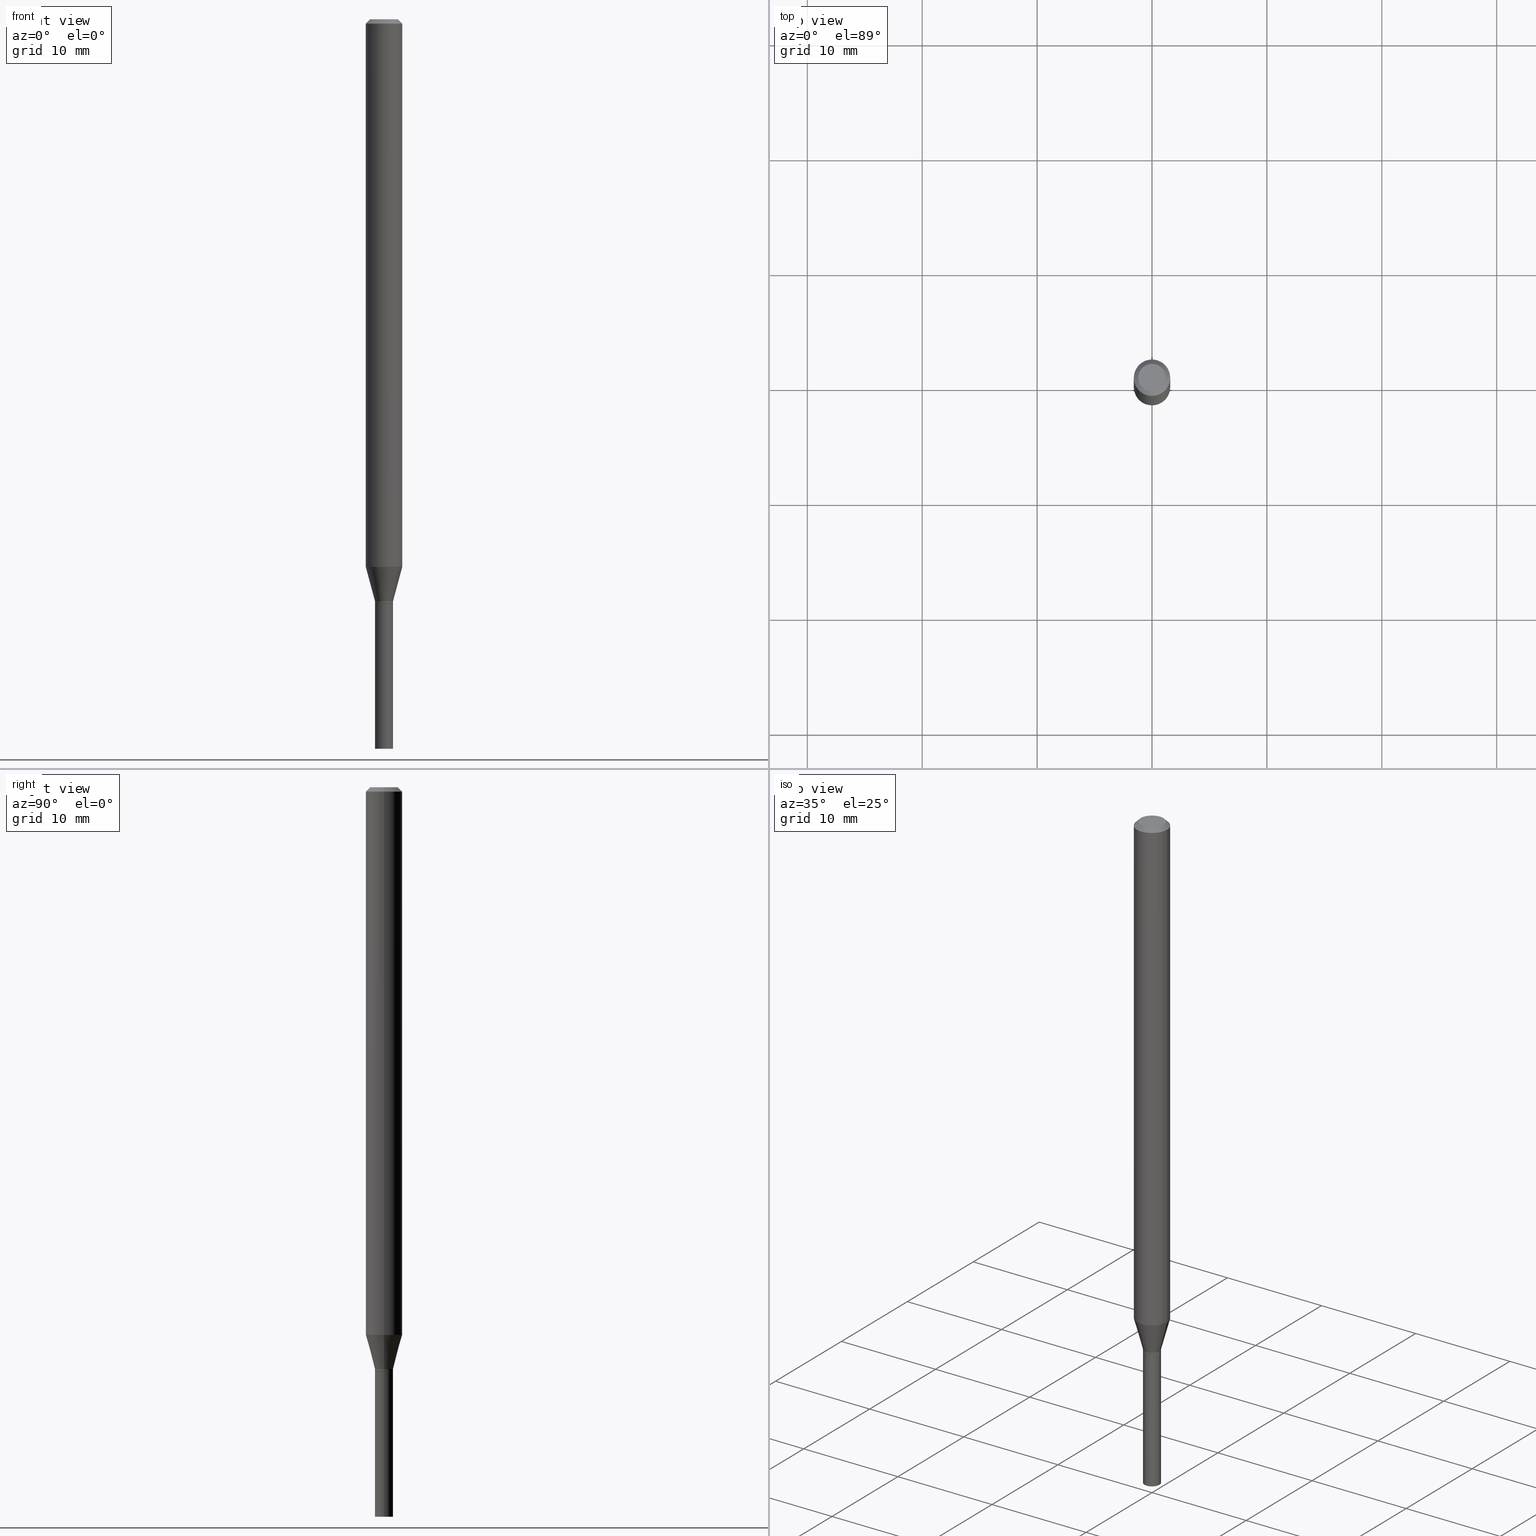
[diagram: canonical four-view strip — front | top / right | iso, engineering-drawing reading convention]
A machine part, canonical four-view strip (front | top / right | iso — engineering-drawing reading convention). The complete STEP part file that produces these views, byte-faithful:
ISO-10303-21;
HEADER;
FILE_DESCRIPTION (( 'STEP AP203' ),
    '1' );
FILE_NAME ('00624.STEP',
    '2024-03-19T22:07:46',
    ( '' ),
    ( '' ),
    'SwSTEP 2.0',
    'SolidWorks 2023',
    '' );
FILE_SCHEMA (( 'CONFIG_CONTROL_DESIGN' ));
ENDSEC;

DATA;
#1 = DIRECTION ( 'NONE',  ( 1.000000000000000000, -6.982962677686266711E-15, 0.000000000000000000 ) ) ;
#2 = EDGE_CURVE ( 'NONE', #117, #336, #379, .T. ) ;
#3 = DIRECTION ( 'NONE',  ( 1.000000000000000000, -6.982962677686266711E-15, 4.876176775795935793E-29 ) ) ;
#4 = ORIENTED_EDGE ( 'NONE', *, *, #252, .T. ) ;
#5 = EDGE_CURVE ( 'NONE', #230, #378, #190, .T. ) ;
#6 = CARTESIAN_POINT ( 'NONE',  ( 0.03099999999999992345, -2.164718430082737148E-16, 1.511614800496736305E-30 ) ) ;
#7 = ORIENTED_EDGE ( 'NONE', *, *, #389, .F. ) ;
#8 = FACE_OUTER_BOUND ( 'NONE', #290, .T. ) ;
#9 = EDGE_LOOP ( 'NONE', ( #403, #189, #405, #225 ) ) ;
#10 = CARTESIAN_POINT ( 'NONE',  ( 3.668203209277705088E-31, -5.237222008264718399E-17, -0.01499999999999999944 ) ) ;
#11 = EDGE_CURVE ( 'NONE', #444, #80, #382, .T. ) ;
#12 = PLANE ( 'NONE',  #276 ) ;
#13 = ORIENTED_EDGE ( 'NONE', *, *, #247, .T. ) ;
#14 = CARTESIAN_POINT ( 'NONE',  ( 0.03099999999999999978, -7.213400446049938314E-15, -2.004000000000000448 ) ) ;
#15 = CONICAL_SURFACE ( 'NONE', #416, 0.03049999999999999586, 0.7853981633969275844 ) ;
#16 = ORIENTED_EDGE ( 'NONE', *, *, #368, .F. ) ;
#17 = ORIENTED_EDGE ( 'NONE', *, *, #31, .T. ) ;
#18 = FACE_OUTER_BOUND ( 'NONE', #298, .T. ) ;
#19 = AXIS2_PLACEMENT_3D ( 'NONE', #158, #88, #271 ) ;
#20 = ORIENTED_EDGE ( 'NONE', *, *, #311, .T. ) ;
#21 = CARTESIAN_POINT ( 'NONE',  ( 0.000000000000000000, 0.000000000000000000, 0.000000000000000000 ) ) ;
#22 = EDGE_CURVE ( 'NONE', #80, #46, #54, .T. ) ;
#23 = DIRECTION ( 'NONE',  ( 2.438088387897960049E-29, -3.491481338843145188E-15, -1.000000000000000000 ) ) ;
#24 = CALENDAR_DATE ( 2024, 19, 3 ) ;
#25 = CARTESIAN_POINT ( 'NONE',  ( -0.04749999999999999362, 3.578768372314207548E-16, -1.869615573468360244E-16 ) ) ;
#26 = AXIS2_PLACEMENT_3D ( 'NONE', #237, #129, #95 ) ;
#27 = PERSON_AND_ORGANIZATION ( #445, #78 ) ;
#28 = PRODUCT_DEFINITION_FORMATION_WITH_SPECIFIED_SOURCE ( 'ANY', '', #224, .NOT_KNOWN. ) ;
#29 = DIRECTION ( 'NONE',  ( -2.445468806185136597E-29, 3.491481338843145583E-15, 1.000000000000000000 ) ) ;
#30 = APPROVAL_DATE_TIME ( #322, #199 ) ;
#31 = EDGE_CURVE ( 'NONE', #378, #444, #270, .T. ) ;
#32 = DIRECTION ( 'NONE',  ( -2.445468806185136597E-29, 3.491481338843145583E-15, 1.000000000000000000 ) ) ;
#33 = COORDINATED_UNIVERSAL_TIME_OFFSET ( 5, 0, .BEHIND. ) ;
#34 = CARTESIAN_POINT ( 'NONE',  ( -0.03049999999999999586, -6.777563841460724793E-15, -2.004000000000000448 ) ) ;
#35 = LOCAL_TIME ( 18, 7, 46.00000000000000000, #361 ) ;
#36 = DIRECTION ( 'NONE',  ( 1.000000000000000000, -6.982962677686254089E-15, 0.000000000000000000 ) ) ;
#37 = EDGE_LOOP ( 'NONE', ( #330, #17, #141, #184 ) ) ;
#38 = ADVANCED_FACE ( 'NONE', ( #52 ), #193, .T. ) ;
#39 = DIRECTION ( 'NONE',  ( 1.000000000000000000, -6.982962677686266711E-15, 4.876176775795935793E-29 ) ) ;
#40 = FACE_OUTER_BOUND ( 'NONE', #9, .T. ) ;
#41 = VERTEX_POINT ( 'NONE', #383 ) ;
#42 = AXIS2_PLACEMENT_3D ( 'NONE', #200, #206, #280 ) ;
#43 = CIRCLE ( 'NONE', #380, 0.03100000000000019060 ) ;
#44 = ADVANCED_FACE ( 'NONE', ( #18 ), #159, .T. ) ;
#45 = DIRECTION ( 'NONE',  ( 0.7071067811865520136, -7.319954787623270245E-15, -0.7071067811865430208 ) ) ;
#46 = VERTEX_POINT ( 'NONE', #174 ) ;
#47 = EDGE_LOOP ( 'NONE', ( #180, #112, #419, #296 ) ) ;
#48 = VECTOR ( 'NONE', #344, 39.37007874015748143 ) ;
#49 = PLANE ( 'NONE',  #107 ) ;
#50 = CARTESIAN_POINT ( 'NONE',  ( -0.06250000000000000000, 3.840629472727444916E-16, -0.01499999999999999944 ) ) ;
#51 = ADVANCED_FACE ( 'NONE', ( #171 ), #318, .F. ) ;
#52 = FACE_OUTER_BOUND ( 'NONE', #304, .T. ) ;
#53 = VERTEX_POINT ( 'NONE', #463 ) ;
#54 = CIRCLE ( 'NONE', #19, 0.03100000000000019060 ) ;
#55 = CARTESIAN_POINT ( 'NONE',  ( -0.06250000000000000000, -6.107467428670576391E-15, -1.876440399561581707 ) ) ;
#56 = CALENDAR_DATE ( 2024, 19, 3 ) ;
#57 = DIRECTION ( 'NONE',  ( -2.445468806185136597E-29, 3.491481338843145583E-15, 1.000000000000000000 ) ) ;
#58 = PERSON_AND_ORGANIZATION_ROLE ( 'creator' ) ;
#59 = DIRECTION ( 'NONE',  ( -2.445468806185136597E-29, 3.491481338843145583E-15, 1.000000000000000000 ) ) ;
#60 = CARTESIAN_POINT ( 'NONE',  ( 4.899496753191922243E-29, -6.995182862372243268E-15, -2.003500000000000281 ) ) ;
#61 = PERSON_AND_ORGANIZATION ( #445, #78 ) ;
#62 = CIRCLE ( 'NONE', #341, 0.06250000000000000000 ) ;
#63 = DIRECTION ( 'NONE',  ( 1.000000000000000000, -6.982962677686270655E-15, 0.000000000000000000 ) ) ;
#64 = PERSON_AND_ORGANIZATION_ROLE ( 'design_supplier' ) ;
#65 = EDGE_CURVE ( 'NONE', #444, #118, #449, .T. ) ;
#66 = DIRECTION ( 'NONE',  ( -2.445468806185136597E-29, 3.491481338843145583E-15, 1.000000000000000000 ) ) ;
#67 = CARTESIAN_POINT ( 'NONE',  ( 4.900719487595015045E-29, -6.996928603041665560E-15, -2.004000000000000448 ) ) ;
#68 = EDGE_CURVE ( 'NONE', #453, #53, #123, .T. ) ;
#69 = VERTEX_POINT ( 'NONE', #461 ) ;
#70 = CIRCLE ( 'NONE', #407, 0.03099999999999999978 ) ;
#71 = LOCAL_TIME ( 18, 7, 46.00000000000000000, #462 ) ;
#72 = CARTESIAN_POINT ( 'NONE',  ( -0.03099999999999999978, -7.642547726989132421E-15, -2.004000000000000448 ) ) ;
#73 = ORIENTED_EDGE ( 'NONE', *, *, #11, .T. ) ;
#74 = LINE ( 'NONE', #331, #452 ) ;
#75 = ORIENTED_EDGE ( 'NONE', *, *, #450, .F. ) ;
#76 = DIRECTION ( 'NONE',  ( 1.000000000000000000, -6.982962677686262766E-15, 0.000000000000000000 ) ) ;
#77 = CC_DESIGN_PERSON_AND_ORGANIZATION_ASSIGNMENT ( #124, #205, ( #28 ) ) ;
#78 = ORGANIZATION ( 'UNSPECIFIED', 'UNSPECIFIED', '' ) ;
#79 = CARTESIAN_POINT ( 'NONE',  ( 4.876264799533162378E-29, -6.962013789653233122E-15, -1.993999999999999995 ) ) ;
#80 = VERTEX_POINT ( 'NONE', #351 ) ;
#81 = LINE ( 'NONE', #376, #317 ) ;
#82 = EDGE_CURVE ( 'NONE', #46, #453, #457, .T. ) ;
#83 = ORIENTED_EDGE ( 'NONE', *, *, #229, .T. ) ;
#84 =( NAMED_UNIT ( * ) SI_UNIT ( $, .STERADIAN. ) SOLID_ANGLE_UNIT ( ) );
#85 = VERTEX_POINT ( 'NONE', #55 ) ;
#86 = CONICAL_SURFACE ( 'NONE', #226, 0.06250000000000000000, 0.7853981633974547183 ) ;
#87 = APPROVAL_PERSON_ORGANIZATION ( #207, #299, #127 ) ;
#88 = DIRECTION ( 'NONE',  ( -2.445468806185136597E-29, 3.491481338843145583E-15, 1.000000000000000000 ) ) ;
#89 = ORIENTED_EDGE ( 'NONE', *, *, #5, .F. ) ;
#90 = ADVANCED_FACE ( 'NONE', ( #285 ), #426, .T. ) ;
#91 = ORIENTED_EDGE ( 'NONE', *, *, #68, .T. ) ;
#92 = CONICAL_SURFACE ( 'NONE', #176, 0.03100000000000019060, 0.2617993877991507956 ) ;
#93 = CARTESIAN_POINT ( 'NONE',  ( 0.06250000000000000000, -4.364351673553916694E-16, 3.047610484872459871E-30 ) ) ;
#94 = CIRCLE ( 'NONE', #114, 0.03099999999999999978 ) ;
#95 = DIRECTION ( 'NONE',  ( 1.000000000000000000, -6.982962677686262766E-15, 0.000000000000000000 ) ) ;
#96 = FACE_OUTER_BOUND ( 'NONE', #37, .T. ) ;
#97 = DIRECTION ( 'NONE',  ( 2.445468806185136597E-29, -3.491481338843145583E-15, -1.000000000000000000 ) ) ;
#98 = VECTOR ( 'NONE', #277, 39.37007874015748143 ) ;
#99 = DIRECTION ( 'NONE',  ( 1.000000000000000000, 0.000000000000000000, 0.000000000000000000 ) ) ;
#100 = AXIS2_PLACEMENT_3D ( 'NONE', #390, #359, #99 ) ;
#101 = DIRECTION ( 'NONE',  ( 1.000000000000000000, -6.982962677686258033E-15, 0.000000000000000000 ) ) ;
#102 = APPLICATION_CONTEXT ( 'configuration controlled 3d designs of mechanical parts and assemblies' ) ;
#103 = LINE ( 'NONE', #397, #269 ) ;
#104 = ORIENTED_EDGE ( 'NONE', *, *, #65, .T. ) ;
#105 = CARTESIAN_POINT ( 'NONE',  ( 4.900719487595015045E-29, -6.996928603041665560E-15, -2.004000000000000448 ) ) ;
#106 = AXIS2_PLACEMENT_3D ( 'NONE', #327, #66, #334 ) ;
#107 = AXIS2_PLACEMENT_3D ( 'NONE', #406, #443, #221 ) ;
#108 = DIRECTION ( 'NONE',  ( 1.000000000000000000, -6.982962677686270655E-15, 0.000000000000000000 ) ) ;
#109 = DIRECTION ( 'NONE',  ( -2.445468806185136597E-29, 3.491481338843145583E-15, 1.000000000000000000 ) ) ;
#110 = EDGE_LOOP ( 'NONE', ( #147, #104, #293, #268 ) ) ;
#111 = DIRECTION ( 'NONE',  ( 1.000000000000000000, -6.982962677686270655E-15, 0.000000000000000000 ) ) ;
#112 = ORIENTED_EDGE ( 'NONE', *, *, #151, .T. ) ;
#113 = CLOSED_SHELL ( 'NONE', ( #38, #166, #377, #236, #128, #438, #303, #121, #51, #395, #346, #90 ) ) ;
#114 = AXIS2_PLACEMENT_3D ( 'NONE', #140, #434, #111 ) ;
#115 = DIRECTION ( 'NONE',  ( -2.445468806185136597E-29, 3.491481338843145583E-15, 1.000000000000000000 ) ) ;
#116 = ORIENTED_EDGE ( 'NONE', *, *, #295, .F. ) ;
#117 = VERTEX_POINT ( 'NONE', #25 ) ;
#118 = VERTEX_POINT ( 'NONE', #126 ) ;
#119 = CIRCLE ( 'NONE', #243, 0.06250000000000000000 ) ;
#120 = EDGE_LOOP ( 'NONE', ( #409, #7 ) ) ;
#121 = ADVANCED_FACE ( 'NONE', ( #196 ), #86, .T. ) ;
#122 = ORIENTED_EDGE ( 'NONE', *, *, #252, .F. ) ;
#123 = LINE ( 'NONE', #93, #323 ) ;
#124 = PERSON_AND_ORGANIZATION ( #445, #78 ) ;
#125 = AXIS2_PLACEMENT_3D ( 'NONE', #454, #430, #393 ) ;
#126 = CARTESIAN_POINT ( 'NONE',  ( 0.03099999999999964936, -7.211654705380514444E-15, -2.003500000000000281 ) ) ;
#127 = APPROVAL_ROLE ( '' ) ;
#128 = ADVANCED_FACE ( 'NONE', ( #321 ), #92, .T. ) ;
#129 = DIRECTION ( 'NONE',  ( -2.445468806185136597E-29, 3.491481338843145583E-15, 1.000000000000000000 ) ) ;
#130 = APPROVAL_DATE_TIME ( #278, #299 ) ;
#131 = DIRECTION ( 'NONE',  ( -1.000000000000000000, 6.982962677686266711E-15, 0.000000000000000000 ) ) ;
#132 = CARTESIAN_POINT ( 'NONE',  ( 3.668203209277705088E-31, -5.237222008264718399E-17, -0.01499999999999999944 ) ) ;
#133 = AXIS2_PLACEMENT_3D ( 'NONE', #358, #239, #355 ) ;
#134 = APPROVAL_STATUS ( 'not_yet_approved' ) ;
#135 = EDGE_CURVE ( 'NONE', #381, #442, #242, .T. ) ;
#136 = CARTESIAN_POINT ( 'NONE',  ( -0.06250000000000000000, -2.857875219451580624E-15, -0.01499999999999999944 ) ) ;
#137 = ORIENTED_EDGE ( 'NONE', *, *, #247, .F. ) ;
#138 = LINE ( 'NONE', #175, #424 ) ;
#139 = ORIENTED_EDGE ( 'NONE', *, *, #465, .T. ) ;
#140 = CARTESIAN_POINT ( 'NONE',  ( 4.900719487595014484E-29, -6.996928603041664772E-15, -2.004000000000000448 ) ) ;
#141 = ORIENTED_EDGE ( 'NONE', *, *, #186, .F. ) ;
#142 = APPROVAL_PERSON_ORGANIZATION ( #422, #281, #354 ) ;
#143 = DIRECTION ( 'NONE',  ( -2.445468806185136597E-29, 3.491481338843145583E-15, 1.000000000000000000 ) ) ;
#144 = EDGE_CURVE ( 'NONE', #85, #453, #348, .T. ) ;
#145 = EDGE_LOOP ( 'NONE', ( #13, #83 ) ) ;
#146 = DIRECTION ( 'NONE',  ( -2.445468806185136597E-29, 3.491481338843145583E-15, 1.000000000000000000 ) ) ;
#147 = ORIENTED_EDGE ( 'NONE', *, *, #11, .F. ) ;
#148 = ADVANCED_FACE ( 'NONE', ( #314 ), #167, .T. ) ;
#149 = CARTESIAN_POINT ( 'NONE',  ( 6.198122052593289668E-29, -8.607766087339451973E-15, -2.500000000000000000 ) ) ;
#150 = VERTEX_POINT ( 'NONE', #320 ) ;
#151 = EDGE_CURVE ( 'NONE', #85, #336, #244, .T. ) ;
#152 = AXIS2_PLACEMENT_3D ( 'NONE', #67, #248, #36 ) ;
#153 = CC_DESIGN_APPROVAL ( #199, ( #28 ) ) ;
#154 =( NAMED_UNIT ( * ) PLANE_ANGLE_UNIT ( ) SI_UNIT ( $, .RADIAN. ) );
#155 = ADVANCED_BREP_SHAPE_REPRESENTATION ( '00624', ( #413, #257, #100 ), #436 ) ;
#156 = ORIENTED_EDGE ( 'NONE', *, *, #368, .T. ) ;
#157 = CARTESIAN_POINT ( 'NONE',  ( 0.06250000000000000000, -6.987991805876030676E-15, -1.876440399561581707 ) ) ;
#158 = CARTESIAN_POINT ( 'NONE',  ( 4.876264799533162378E-29, -6.962013789653233122E-15, -1.993999999999999995 ) ) ;
#159 = CYLINDRICAL_SURFACE ( 'NONE', #316, 0.03099999999999999978 ) ;
#160 = AXIS2_PLACEMENT_3D ( 'NONE', #194, #345, #451 ) ;
#161 = LOCAL_TIME ( 18, 7, 46.00000000000000000, #33 ) ;
#162 = PRODUCT_RELATED_PRODUCT_CATEGORY ( 'detail', '', ( #224 ) ) ;
#163 = ORIENTED_EDGE ( 'NONE', *, *, #295, .T. ) ;
#164 = CARTESIAN_POINT ( 'NONE',  ( 3.316907271900976096E-16, 0.04749999999999999362, -2.593261422684662377E-16 ) ) ;
#165 = APPROVAL_STATUS ( 'not_yet_approved' ) ;
#166 = ADVANCED_FACE ( 'NONE', ( #96 ), #332, .T. ) ;
#167 = CYLINDRICAL_SURFACE ( 'NONE', #42, 0.03099999999999999978 ) ;
#168 = DATE_AND_TIME ( #24, #35 ) ;
#169 = AXIS2_PLACEMENT_3D ( 'NONE', #447, #411, #222 ) ;
#170 = CONICAL_SURFACE ( 'NONE', #211, 0.06250000000000000000, 0.7853981633974547183 ) ;
#171 = FACE_OUTER_BOUND ( 'NONE', #145, .T. ) ;
#172 = DATE_AND_TIME ( #56, #71 ) ;
#173 = CARTESIAN_POINT ( 'NONE',  ( -0.06250000000000000000, 4.440892098500626162E-16, -3.074334431409316114E-30 ) ) ;
#174 = CARTESIAN_POINT ( 'NONE',  ( 0.03100000000000019060, -7.178485632661508242E-15, -1.993999999999999995 ) ) ;
#175 = CARTESIAN_POINT ( 'NONE',  ( -0.03100000000000019060, -6.741745541567601080E-15, -1.993999999999999995 ) ) ;
#176 = AXIS2_PLACEMENT_3D ( 'NONE', #421, #29, #101 ) ;
#177 = DIRECTION ( 'NONE',  ( -2.445468806185136597E-29, 3.491481338843145583E-15, 1.000000000000000000 ) ) ;
#178 = ORIENTED_EDGE ( 'NONE', *, *, #261, .F. ) ;
#179 = CYLINDRICAL_SURFACE ( 'NONE', #429, 0.06250000000000000000 ) ;
#180 = ORIENTED_EDGE ( 'NONE', *, *, #261, .T. ) ;
#181 = EDGE_CURVE ( 'NONE', #69, #150, #70, .T. ) ;
#182 = DIRECTION ( 'NONE',  ( 1.000000000000000000, -6.982962677686265922E-15, 4.876176775795935793E-29 ) ) ;
#183 = DIRECTION ( 'NONE',  ( 0.7071067811861793118, -2.468850131078399925E-15, 0.7071067811869157227 ) ) ;
#184 = ORIENTED_EDGE ( 'NONE', *, *, #288, .F. ) ;
#185 =( LENGTH_UNIT ( ) NAMED_UNIT ( * ) SI_UNIT ( $, .METRE. ) );
#186 = EDGE_CURVE ( 'NONE', #118, #444, #363, .T. ) ;
#187 = ORIENTED_EDGE ( 'NONE', *, *, #389, .T. ) ;
#188 = CARTESIAN_POINT ( 'NONE',  ( 4.876264799533162378E-29, -6.962013789653233122E-15, -1.993999999999999995 ) ) ;
#189 = ORIENTED_EDGE ( 'NONE', *, *, #231, .T. ) ;
#190 = CIRCLE ( 'NONE', #169, 0.03049999999999999586 ) ;
#191 = CIRCLE ( 'NONE', #253, 0.06250000000000000000 ) ;
#192 = CARTESIAN_POINT ( 'NONE',  ( -0.03099999999999992345, 2.202682480856305137E-16, -1.524869877979016933E-30 ) ) ;
#193 = CYLINDRICAL_SURFACE ( 'NONE', #160, 0.03099999999999992345 ) ;
#194 = CARTESIAN_POINT ( 'NONE',  ( 0.000000000000000000, 0.000000000000000000, 0.000000000000000000 ) ) ;
#195 = AXIS2_PLACEMENT_3D ( 'NONE', #60, #204, #428 ) ;
#196 = FACE_OUTER_BOUND ( 'NONE', #347, .T. ) ;
#197 = PERSON_AND_ORGANIZATION ( #445, #78 ) ;
#198 = DIRECTION ( 'NONE',  ( -2.445468806185136597E-29, 3.491481338843145583E-15, 1.000000000000000000 ) ) ;
#199 = APPROVAL ( #165, 'UNSPECIFIED' ) ;
#200 = CARTESIAN_POINT ( 'NONE',  ( 0.000000000000000000, 0.000000000000000000, 0.000000000000000000 ) ) ;
#201 = APPLICATION_PROTOCOL_DEFINITION ( 'international standard', 'config_control_design', 1994, #212 ) ;
#202 = VECTOR ( 'NONE', #464, 39.37007874015748854 ) ;
#203 = CONICAL_SURFACE ( 'NONE', #392, 0.03100000000000019060, 0.2617993877991507956 ) ;
#204 = DIRECTION ( 'NONE',  ( -2.445468806185136597E-29, 3.491481338843145583E-15, 1.000000000000000000 ) ) ;
#205 = PERSON_AND_ORGANIZATION_ROLE ( 'creator' ) ;
#206 = DIRECTION ( 'NONE',  ( -2.445468806185136597E-29, 3.491481338843145583E-15, 1.000000000000000000 ) ) ;
#207 = PERSON_AND_ORGANIZATION ( #445, #78 ) ;
#208 = CARTESIAN_POINT ( 'NONE',  ( 3.668203209277705088E-31, -5.237222008264718399E-17, -0.01499999999999999944 ) ) ;
#209 = DIRECTION ( 'NONE',  ( -2.445468806185136877E-29, 3.491481338843145188E-15, 1.000000000000000000 ) ) ;
#210 = AXIS2_PLACEMENT_3D ( 'NONE', #360, #32, #289 ) ;
#211 = AXIS2_PLACEMENT_3D ( 'NONE', #250, #400, #396 ) ;
#212 = APPLICATION_CONTEXT ( 'configuration controlled 3d designs of mechanical parts and assemblies' ) ;
#213 = CARTESIAN_POINT ( 'NONE',  ( 0.000000000000000000, 0.000000000000000000, 0.000000000000000000 ) ) ;
#214 = CARTESIAN_POINT ( 'NONE',  ( 4.900719487595014484E-29, -6.996928603041664772E-15, -2.004000000000000448 ) ) ;
#215 = ORIENTED_EDGE ( 'NONE', *, *, #450, .T. ) ;
#216 = LINE ( 'NONE', #369, #460 ) ;
#217 = EDGE_LOOP ( 'NONE', ( #433, #325, #309, #338 ) ) ;
#218 = LOCAL_TIME ( 18, 7, 46.00000000000000000, #394 ) ;
#219 = DIRECTION ( 'NONE',  ( 1.000000000000000000, -6.982962677686258033E-15, 0.000000000000000000 ) ) ;
#220 = ORIENTED_EDGE ( 'NONE', *, *, #144, .T. ) ;
#221 = DIRECTION ( 'NONE',  ( -1.000000000000000000, 6.982962677686265922E-15, -4.876176775795935793E-29 ) ) ;
#222 = DIRECTION ( 'NONE',  ( 1.000000000000000000, -6.982962677686254089E-15, 0.000000000000000000 ) ) ;
#223 = DIRECTION ( 'NONE',  ( -2.445468806185136877E-29, 3.491481338843145188E-15, 1.000000000000000000 ) ) ;
#224 = PRODUCT ( '00624', '00624', '', ( #384 ) ) ;
#225 = ORIENTED_EDGE ( 'NONE', *, *, #65, .F. ) ;
#226 = AXIS2_PLACEMENT_3D ( 'NONE', #132, #97, #131 ) ;
#227 = AXIS2_PLACEMENT_3D ( 'NONE', #214, #367, #182 ) ;
#228 = DIRECTION ( 'NONE',  ( -0.7071067811861793118, 7.493145998869024141E-15, 0.7071067811869157227 ) ) ;
#229 = EDGE_CURVE ( 'NONE', #41, #117, #466, .T. ) ;
#230 = VERTEX_POINT ( 'NONE', #441 ) ;
#231 = EDGE_CURVE ( 'NONE', #378, #230, #302, .T. ) ;
#232 = ORIENTED_EDGE ( 'NONE', *, *, #22, .T. ) ;
#233 = PERSON_AND_ORGANIZATION ( #445, #78 ) ;
#234 = AXIS2_PLACEMENT_3D ( 'NONE', #164, #23, #312 ) ;
#235 = VECTOR ( 'NONE', #291, 39.37007874015748143 ) ;
#236 = ADVANCED_FACE ( 'NONE', ( #287 ), #324, .T. ) ;
#237 = CARTESIAN_POINT ( 'NONE',  ( 4.588776463793421999E-29, -6.551556638520639007E-15, -1.876440399561581707 ) ) ;
#238 = APPROVAL_STATUS ( 'not_yet_approved' ) ;
#239 = DIRECTION ( 'NONE',  ( -2.445468806185136597E-29, 3.491481338843145583E-15, 1.000000000000000000 ) ) ;
#240 = SHAPE_DEFINITION_REPRESENTATION ( #374, #155 ) ;
#241 = CARTESIAN_POINT ( 'NONE',  ( 6.113672015462842613E-29, -8.728703347107864943E-15, -2.500000000000000000 ) ) ;
#242 = CIRCLE ( 'NONE', #423, 0.03099999999999999978 ) ;
#243 = AXIS2_PLACEMENT_3D ( 'NONE', #208, #177, #294 ) ;
#244 = LINE ( 'NONE', #173, #98 ) ;
#245 = PERSON_AND_ORGANIZATION_ROLE ( 'design_owner' ) ;
#246 = DIRECTION ( 'NONE',  ( 1.000000000000000000, -6.982962677686270655E-15, 0.000000000000000000 ) ) ;
#247 = EDGE_CURVE ( 'NONE', #117, #41, #275, .T. ) ;
#248 = DIRECTION ( 'NONE',  ( -2.445468806185136597E-29, 3.491481338843145583E-15, 1.000000000000000000 ) ) ;
#249 = ORIENTED_EDGE ( 'NONE', *, *, #151, .F. ) ;
#250 = CARTESIAN_POINT ( 'NONE',  ( 3.668203209277705088E-31, -5.237222008264718399E-17, -0.01499999999999999944 ) ) ;
#251 = AXIS2_PLACEMENT_3D ( 'NONE', #213, #258, #39 ) ;
#252 = EDGE_CURVE ( 'NONE', #336, #53, #119, .T. ) ;
#253 = AXIS2_PLACEMENT_3D ( 'NONE', #404, #365, #76 ) ;
#254 = CC_DESIGN_APPROVAL ( #299, ( #370 ) ) ;
#255 = FACE_OUTER_BOUND ( 'NONE', #435, .T. ) ;
#256 = ORIENTED_EDGE ( 'NONE', *, *, #231, .F. ) ;
#257 = MANIFOLD_SOLID_BREP ( 'Body-Move/Copy2[2]', #113 ) ;
#258 = DIRECTION ( 'NONE',  ( -2.445468806185136597E-29, 3.491481338843145583E-15, 1.000000000000000000 ) ) ;
#259 = DESIGN_CONTEXT ( 'detailed design', #212, 'design' ) ;
#260 = ORIENTED_EDGE ( 'NONE', *, *, #2, .T. ) ;
#261 = EDGE_CURVE ( 'NONE', #453, #85, #191, .T. ) ;
#262 = FACE_OUTER_BOUND ( 'NONE', #371, .T. ) ;
#263 = ORIENTED_EDGE ( 'NONE', *, *, #181, .T. ) ;
#264 = CLOSED_SHELL ( 'NONE', ( #148, #410, #44, #420 ) ) ;
#265 = DIRECTION ( 'NONE',  ( 1.000000000000000000, -6.982962677686258033E-15, 0.000000000000000000 ) ) ;
#266 = DIRECTION ( 'NONE',  ( -0.7071067811865520136, 2.468850131082303998E-15, -0.7071067811865430208 ) ) ;
#267 = EDGE_LOOP ( 'NONE', ( #156, #301 ) ) ;
#268 = ORIENTED_EDGE ( 'NONE', *, *, #22, .F. ) ;
#269 = VECTOR ( 'NONE', #209, 39.37007874015748143 ) ;
#270 = LINE ( 'NONE', #417, #458 ) ;
#271 = DIRECTION ( 'NONE',  ( 1.000000000000000000, -6.982962677686258033E-15, 0.000000000000000000 ) ) ;
#272 = EDGE_CURVE ( 'NONE', #41, #53, #216, .T. ) ;
#273 = CARTESIAN_POINT ( 'NONE',  ( 0.000000000000000000, 0.000000000000000000, 0.000000000000000000 ) ) ;
#274 = SECURITY_CLASSIFICATION_LEVEL ( 'unclassified' ) ;
#275 = CIRCLE ( 'NONE', #106, 0.04749999999999999362 ) ;
#276 = AXIS2_PLACEMENT_3D ( 'NONE', #149, #337, #300 ) ;
#277 = DIRECTION ( 'NONE',  ( -2.445468806185136877E-29, 3.491481338843145188E-15, 1.000000000000000000 ) ) ;
#278 = DATE_AND_TIME ( #286, #161 ) ;
#279 = DIRECTION ( 'NONE',  ( -2.445468806185136877E-29, 3.491481338843145188E-15, 1.000000000000000000 ) ) ;
#280 = DIRECTION ( 'NONE',  ( 1.000000000000000000, -6.982962677686266711E-15, 4.876176775795935232E-29 ) ) ;
#281 = APPROVAL ( #238, 'UNSPECIFIED' ) ;
#282 = DATE_AND_TIME ( #356, #218 ) ;
#283 = AXIS2_PLACEMENT_3D ( 'NONE', #273, #57, #385 ) ;
#284 = APPROVAL_PERSON_ORGANIZATION ( #427, #199, #387 ) ;
#285 = FACE_OUTER_BOUND ( 'NONE', #110, .T. ) ;
#286 = CALENDAR_DATE ( 2024, 19, 3 ) ;
#287 = FACE_OUTER_BOUND ( 'NONE', #47, .T. ) ;
#288 = EDGE_CURVE ( 'NONE', #230, #118, #74, .T. ) ;
#289 = DIRECTION ( 'NONE',  ( 1.000000000000000000, -6.982962677686267499E-15, 4.852736867747366768E-29 ) ) ;
#290 = EDGE_LOOP ( 'NONE', ( #249, #220, #91, #122 ) ) ;
#291 = DIRECTION ( 'NONE',  ( -2.445468806185136877E-29, 3.491481338843145188E-15, 1.000000000000000000 ) ) ;
#292 = CC_DESIGN_APPROVAL ( #281, ( #342 ) ) ;
#293 = ORIENTED_EDGE ( 'NONE', *, *, #386, .T. ) ;
#294 = DIRECTION ( 'NONE',  ( 1.000000000000000000, -6.982962677686266711E-15, 0.000000000000000000 ) ) ;
#295 = EDGE_CURVE ( 'NONE', #69, #442, #103, .T. ) ;
#296 = ORIENTED_EDGE ( 'NONE', *, *, #68, .F. ) ;
#297 = DIRECTION ( 'NONE',  ( 1.000000000000000000, -6.982962677686254089E-15, 0.000000000000000000 ) ) ;
#298 = EDGE_LOOP ( 'NONE', ( #448, #187, #163, #401 ) ) ;
#299 = APPROVAL ( #134, 'UNSPECIFIED' ) ;
#300 = DIRECTION ( 'NONE',  ( 1.000000000000000000, -6.982962677686265922E-15, 4.876176775795935793E-29 ) ) ;
#301 = ORIENTED_EDGE ( 'NONE', *, *, #135, .T. ) ;
#302 = CIRCLE ( 'NONE', #152, 0.03049999999999999586 ) ;
#303 = ADVANCED_FACE ( 'NONE', ( #8 ), #179, .T. ) ;
#304 = EDGE_LOOP ( 'NONE', ( #375, #73, #75, #307 ) ) ;
#305 = EDGE_CURVE ( 'NONE', #53, #336, #62, .T. ) ;
#306 =( CONVERSION_BASED_UNIT ( 'INCH', #339 ) LENGTH_UNIT ( ) NAMED_UNIT ( #373 ) );
#307 = ORIENTED_EDGE ( 'NONE', *, *, #386, .F. ) ;
#308 = UNCERTAINTY_MEASURE_WITH_UNIT (LENGTH_MEASURE( 1.000000000000000082E-05 ), #306, 'distance_accuracy_value', 'NONE');
#309 = ORIENTED_EDGE ( 'NONE', *, *, #305, .T. ) ;
#310 = ORIENTED_EDGE ( 'NONE', *, *, #82, .F. ) ;
#311 = EDGE_CURVE ( 'NONE', #80, #85, #138, .T. ) ;
#312 = DIRECTION ( 'NONE',  ( -1.000000000000000000, 6.982962677686265922E-15, -4.876176775795935793E-29 ) ) ;
#313 = COORDINATED_UNIVERSAL_TIME_OFFSET ( 5, 0, .BEHIND. ) ;
#314 = FACE_OUTER_BOUND ( 'NONE', #340, .T. ) ;
#315 = APPROVAL_DATE_TIME ( #172, #281 ) ;
#316 = AXIS2_PLACEMENT_3D ( 'NONE', #21, #198, #388 ) ;
#317 = VECTOR ( 'NONE', #223, 39.37007874015748143 ) ;
#318 = PLANE ( 'NONE',  #234 ) ;
#319 = PERSON_AND_ORGANIZATION_ROLE ( 'classification_officer' ) ;
#320 = CARTESIAN_POINT ( 'NONE',  ( -0.03099999999999999978, -7.642547726989132421E-15, -2.500000000000000000 ) ) ;
#321 = FACE_OUTER_BOUND ( 'NONE', #412, .T. ) ;
#322 = DATE_AND_TIME ( #455, #333 ) ;
#323 = VECTOR ( 'NONE', #279, 39.37007874015748143 ) ;
#324 = CYLINDRICAL_SURFACE ( 'NONE', #251, 0.06250000000000000000 ) ;
#325 = ORIENTED_EDGE ( 'NONE', *, *, #272, .T. ) ;
#326 = CC_DESIGN_DATE_AND_TIME_ASSIGNMENT ( #282, #352, ( #342 ) ) ;
#327 = CARTESIAN_POINT ( 'NONE',  ( 4.572086564474752109E-45, -6.527727885575223091E-31, -1.869615573468336332E-16 ) ) ;
#328 = ORIENTED_EDGE ( 'NONE', *, *, #144, .F. ) ;
#329 = LINE ( 'NONE', #6, #235 ) ;
#330 = ORIENTED_EDGE ( 'NONE', *, *, #5, .T. ) ;
#331 = CARTESIAN_POINT ( 'NONE',  ( 0.03049999999999999586, -7.209908964711096884E-15, -2.004000000000000448 ) ) ;
#332 = CONICAL_SURFACE ( 'NONE', #133, 0.03049999999999999586, 0.7853981633969275844 ) ;
#333 = LOCAL_TIME ( 18, 7, 46.00000000000000000, #313 ) ;
#334 = DIRECTION ( 'NONE',  ( 1.000000000000000000, -6.982962677686267499E-15, 4.852736867747366768E-29 ) ) ;
#335 = CC_DESIGN_PERSON_AND_ORGANIZATION_ASSIGNMENT ( #61, #64, ( #28 ) ) ;
#336 = VERTEX_POINT ( 'NONE', #136 ) ;
#337 = DIRECTION ( 'NONE',  ( -2.438088387897960049E-29, 3.491481338843145188E-15, 1.000000000000000000 ) ) ;
#338 = ORIENTED_EDGE ( 'NONE', *, *, #2, .F. ) ;
#339 = LENGTH_MEASURE_WITH_UNIT ( LENGTH_MEASURE( 0.02539999999999999897 ), #185 );
#340 = EDGE_LOOP ( 'NONE', ( #263, #139, #16, #116 ) ) ;
#341 = AXIS2_PLACEMENT_3D ( 'NONE', #10, #109, #1 ) ;
#342 = PRODUCT_DEFINITION ( 'UNKNOWN', '', #28, #259 ) ;
#343 = DIRECTION ( 'NONE',  ( -2.445468806185136597E-29, 3.491481338843145583E-15, 1.000000000000000000 ) ) ;
#344 = DIRECTION ( 'NONE',  ( -2.445468806185136877E-29, 3.491481338843145188E-15, 1.000000000000000000 ) ) ;
#345 = DIRECTION ( 'NONE',  ( -2.445468806185136597E-29, 3.491481338843145583E-15, 1.000000000000000000 ) ) ;
#346 = ADVANCED_FACE ( 'NONE', ( #40 ), #15, .T. ) ;
#347 = EDGE_LOOP ( 'NONE', ( #440, #137, #260, #4 ) ) ;
#348 = CIRCLE ( 'NONE', #26, 0.06250000000000000000 ) ;
#349 = CC_DESIGN_SECURITY_CLASSIFICATION ( #370, ( #28 ) ) ;
#350 = CC_DESIGN_PERSON_AND_ORGANIZATION_ASSIGNMENT ( #233, #245, ( #224 ) ) ;
#351 = CARTESIAN_POINT ( 'NONE',  ( -0.03100000000000019060, -6.424606485119088736E-15, -1.993999999999999995 ) ) ;
#352 = DATE_TIME_ROLE ( 'creation_date' ) ;
#353 = CARTESIAN_POINT ( 'NONE',  ( 4.900719487595014484E-29, -6.996928603041664772E-15, -2.004000000000000448 ) ) ;
#354 = APPROVAL_ROLE ( '' ) ;
#355 = DIRECTION ( 'NONE',  ( 1.000000000000000000, -6.982962677686254089E-15, 0.000000000000000000 ) ) ;
#356 = CALENDAR_DATE ( 2024, 19, 3 ) ;
#357 = CC_DESIGN_DATE_AND_TIME_ASSIGNMENT ( #168, #459, ( #370 ) ) ;
#358 = CARTESIAN_POINT ( 'NONE',  ( 4.900719487595015045E-29, -6.996928603041665560E-15, -2.004000000000000448 ) ) ;
#359 = DIRECTION ( 'NONE',  ( 0.000000000000000000, 0.000000000000000000, 1.000000000000000000 ) ) ;
#360 = CARTESIAN_POINT ( 'NONE',  ( 4.572086564474752109E-45, -6.527727885575223091E-31, -1.869615573468336332E-16 ) ) ;
#361 = COORDINATED_UNIVERSAL_TIME_OFFSET ( 5, 0, .BEHIND. ) ;
#362 = DIRECTION ( 'NONE',  ( -2.445468806185136597E-29, 3.491481338843145583E-15, 1.000000000000000000 ) ) ;
#363 = CIRCLE ( 'NONE', #195, 0.03099999999999964936 ) ;
#364 = CIRCLE ( 'NONE', #408, 0.03099999999999999978 ) ;
#365 = DIRECTION ( 'NONE',  ( -2.445468806185136597E-29, 3.491481338843145583E-15, 1.000000000000000000 ) ) ;
#366 = DIRECTION ( 'NONE',  ( -0.2588190451025220162, 5.211531920934554197E-15, 0.9659258262890678681 ) ) ;
#367 = DIRECTION ( 'NONE',  ( -2.438088387897960049E-29, 3.491481338843145188E-15, 1.000000000000000000 ) ) ;
#368 = EDGE_CURVE ( 'NONE', #442, #381, #94, .T. ) ;
#369 = CARTESIAN_POINT ( 'NONE',  ( 0.06250000000000000000, -4.811533449433679005E-16, -0.01499999999999999944 ) ) ;
#370 = SECURITY_CLASSIFICATION ( '', '', #274 ) ;
#371 = EDGE_LOOP ( 'NONE', ( #398, #232, #415, #328 ) ) ;
#372 = CARTESIAN_POINT ( 'NONE',  ( -0.03099999999999964936, -6.774914614286615170E-15, -2.003500000000000281 ) ) ;
#373 = DIMENSIONAL_EXPONENTS ( 1.000000000000000000, 0.000000000000000000, 0.000000000000000000, 0.000000000000000000, 0.000000000000000000, 0.000000000000000000, 0.000000000000000000 ) ;
#374 = PRODUCT_DEFINITION_SHAPE ( 'NONE', 'NONE',  #342 ) ;
#375 = ORIENTED_EDGE ( 'NONE', *, *, #186, .T. ) ;
#376 = CARTESIAN_POINT ( 'NONE',  ( -0.03099999999999999978, 2.202682480856310560E-16, -1.524869877979020612E-30 ) ) ;
#377 = ADVANCED_FACE ( 'NONE', ( #432 ), #170, .T. ) ;
#378 = VERTEX_POINT ( 'NONE', #34 ) ;
#379 = LINE ( 'NONE', #50, #399 ) ;
#380 = AXIS2_PLACEMENT_3D ( 'NONE', #188, #343, #219 ) ;
#381 = VERTEX_POINT ( 'NONE', #72 ) ;
#382 = LINE ( 'NONE', #192, #48 ) ;
#383 = CARTESIAN_POINT ( 'NONE',  ( 0.04749999999999999362, -4.035134999187581581E-16, -1.869615573468310694E-16 ) ) ;
#384 = MECHANICAL_CONTEXT ( 'NONE', #102, 'mechanical' ) ;
#385 = DIRECTION ( 'NONE',  ( 1.000000000000000000, -6.982962677686265922E-15, 4.876176775795935793E-29 ) ) ;
#386 = EDGE_CURVE ( 'NONE', #118, #46, #329, .T. ) ;
#387 = APPROVAL_ROLE ( '' ) ;
#388 = DIRECTION ( 'NONE',  ( 1.000000000000000000, -6.982962677686266711E-15, 4.876176775795935232E-29 ) ) ;
#389 = EDGE_CURVE ( 'NONE', #150, #69, #364, .T. ) ;
#390 = CARTESIAN_POINT ( 'NONE',  ( 0.000000000000000000, 0.000000000000000000, 0.000000000000000000 ) ) ;
#391 = DIRECTION ( 'NONE',  ( -2.445468806185136597E-29, 3.491481338843145583E-15, 1.000000000000000000 ) ) ;
#392 = AXIS2_PLACEMENT_3D ( 'NONE', #79, #115, #265 ) ;
#393 = DIRECTION ( 'NONE',  ( 1.000000000000000000, -6.982962677686255667E-15, 0.000000000000000000 ) ) ;
#394 = COORDINATED_UNIVERSAL_TIME_OFFSET ( 5, 0, .BEHIND. ) ;
#395 = ADVANCED_FACE ( 'NONE', ( #255 ), #402, .F. ) ;
#396 = DIRECTION ( 'NONE',  ( -1.000000000000000000, 6.982962677686266711E-15, 0.000000000000000000 ) ) ;
#397 = CARTESIAN_POINT ( 'NONE',  ( 0.03099999999999999978, -2.164718430082742572E-16, 1.511614800496739984E-30 ) ) ;
#398 = ORIENTED_EDGE ( 'NONE', *, *, #311, .F. ) ;
#399 = VECTOR ( 'NONE', #266, 39.37007874015748143 ) ;
#400 = DIRECTION ( 'NONE',  ( 2.445468806185136597E-29, -3.491481338843145583E-15, -1.000000000000000000 ) ) ;
#401 = ORIENTED_EDGE ( 'NONE', *, *, #135, .F. ) ;
#402 = PLANE ( 'NONE',  #227 ) ;
#403 = ORIENTED_EDGE ( 'NONE', *, *, #31, .F. ) ;
#404 = CARTESIAN_POINT ( 'NONE',  ( 4.588776463793421999E-29, -6.551556638520639007E-15, -1.876440399561581707 ) ) ;
#405 = ORIENTED_EDGE ( 'NONE', *, *, #288, .T. ) ;
#406 = CARTESIAN_POINT ( 'NONE',  ( 2.164718430083232405E-16, 0.03099999999999300190, -2.004000000000000448 ) ) ;
#407 = AXIS2_PLACEMENT_3D ( 'NONE', #241, #391, #246 ) ;
#408 = AXIS2_PLACEMENT_3D ( 'NONE', #437, #143, #108 ) ;
#409 = ORIENTED_EDGE ( 'NONE', *, *, #181, .F. ) ;
#410 = ADVANCED_FACE ( 'NONE', ( #414 ), #12, .F. ) ;
#411 = DIRECTION ( 'NONE',  ( -2.445468806185136597E-29, 3.491481338843145583E-15, 1.000000000000000000 ) ) ;
#412 = EDGE_LOOP ( 'NONE', ( #215, #20, #178, #310 ) ) ;
#413 = MANIFOLD_SOLID_BREP ( 'Body-Move/Copy2[1]', #264 ) ;
#414 = FACE_OUTER_BOUND ( 'NONE', #120, .T. ) ;
#415 = ORIENTED_EDGE ( 'NONE', *, *, #82, .T. ) ;
#416 = AXIS2_PLACEMENT_3D ( 'NONE', #105, #146, #297 ) ;
#417 = CARTESIAN_POINT ( 'NONE',  ( -0.03049999999999999586, -6.780213068634835206E-15, -2.004000000000000448 ) ) ;
#418 = CC_DESIGN_PERSON_AND_ORGANIZATION_ASSIGNMENT ( #197, #319, ( #370 ) ) ;
#419 = ORIENTED_EDGE ( 'NONE', *, *, #305, .F. ) ;
#420 = ADVANCED_FACE ( 'NONE', ( #446 ), #49, .F. ) ;
#421 = CARTESIAN_POINT ( 'NONE',  ( 4.876264799533162378E-29, -6.962013789653233122E-15, -1.993999999999999995 ) ) ;
#422 = PERSON_AND_ORGANIZATION ( #445, #78 ) ;
#423 = AXIS2_PLACEMENT_3D ( 'NONE', #353, #59, #63 ) ;
#424 = VECTOR ( 'NONE', #366, 39.37007874015748854 ) ;
#425 = CARTESIAN_POINT ( 'NONE',  ( 0.03100000000000019060, -7.178485632661508242E-15, -1.993999999999999995 ) ) ;
#426 = CYLINDRICAL_SURFACE ( 'NONE', #283, 0.03099999999999992345 ) ;
#427 = PERSON_AND_ORGANIZATION ( #445, #78 ) ;
#428 = DIRECTION ( 'NONE',  ( 1.000000000000000000, -6.982962677686255667E-15, 0.000000000000000000 ) ) ;
#429 = AXIS2_PLACEMENT_3D ( 'NONE', #439, #362, #3 ) ;
#430 = DIRECTION ( 'NONE',  ( -2.445468806185136597E-29, 3.491481338843145583E-15, 1.000000000000000000 ) ) ;
#431 = APPLICATION_PROTOCOL_DEFINITION ( 'international standard', 'config_control_design', 1994, #102 ) ;
#432 = FACE_OUTER_BOUND ( 'NONE', #217, .T. ) ;
#433 = ORIENTED_EDGE ( 'NONE', *, *, #229, .F. ) ;
#434 = DIRECTION ( 'NONE',  ( -2.445468806185136597E-29, 3.491481338843145583E-15, 1.000000000000000000 ) ) ;
#435 = EDGE_LOOP ( 'NONE', ( #89, #256 ) ) ;
#436 =( GEOMETRIC_REPRESENTATION_CONTEXT ( 3 ) GLOBAL_UNCERTAINTY_ASSIGNED_CONTEXT ( ( #308 ) ) GLOBAL_UNIT_ASSIGNED_CONTEXT ( ( #306, #154, #84 ) ) REPRESENTATION_CONTEXT ( 'NONE', 'WORKASPACE' ) );
#437 = CARTESIAN_POINT ( 'NONE',  ( 6.113672015462842613E-29, -8.728703347107864943E-15, -2.500000000000000000 ) ) ;
#438 = ADVANCED_FACE ( 'NONE', ( #262 ), #203, .T. ) ;
#439 = CARTESIAN_POINT ( 'NONE',  ( 0.000000000000000000, 0.000000000000000000, 0.000000000000000000 ) ) ;
#440 = ORIENTED_EDGE ( 'NONE', *, *, #272, .F. ) ;
#441 = CARTESIAN_POINT ( 'NONE',  ( 0.03049999999999999586, -7.209908964711096884E-15, -2.004000000000000448 ) ) ;
#442 = VERTEX_POINT ( 'NONE', #14 ) ;
#443 = DIRECTION ( 'NONE',  ( 2.438088387897960049E-29, -3.491481338843145188E-15, -1.000000000000000000 ) ) ;
#444 = VERTEX_POINT ( 'NONE', #372 ) ;
#445 = PERSON ( 'UNSPECIFIED', 'UNSPECIFIED', 'UNSPECIFIED', ('UNSPECIFIED'), ('UNSPECIFIED'), ('UNSPECIFIED') ) ;
#446 = FACE_OUTER_BOUND ( 'NONE', #267, .T. ) ;
#447 = CARTESIAN_POINT ( 'NONE',  ( 4.900719487595015045E-29, -6.996928603041665560E-15, -2.004000000000000448 ) ) ;
#448 = ORIENTED_EDGE ( 'NONE', *, *, #465, .F. ) ;
#449 = CIRCLE ( 'NONE', #125, 0.03099999999999964936 ) ;
#450 = EDGE_CURVE ( 'NONE', #46, #80, #43, .T. ) ;
#451 = DIRECTION ( 'NONE',  ( 1.000000000000000000, -6.982962677686265922E-15, 4.876176775795935793E-29 ) ) ;
#452 = VECTOR ( 'NONE', #183, 39.37007874015748143 ) ;
#453 = VERTEX_POINT ( 'NONE', #157 ) ;
#454 = CARTESIAN_POINT ( 'NONE',  ( 4.899496753191922243E-29, -6.995182862372243268E-15, -2.003500000000000281 ) ) ;
#455 = CALENDAR_DATE ( 2024, 19, 3 ) ;
#456 = CC_DESIGN_PERSON_AND_ORGANIZATION_ASSIGNMENT ( #27, #58, ( #342 ) ) ;
#457 = LINE ( 'NONE', #425, #202 ) ;
#458 = VECTOR ( 'NONE', #228, 39.37007874015748143 ) ;
#459 = DATE_TIME_ROLE ( 'classification_date' ) ;
#460 = VECTOR ( 'NONE', #45, 39.37007874015748143 ) ;
#461 = CARTESIAN_POINT ( 'NONE',  ( 0.03099999999999999978, -8.945175190116139274E-15, -2.500000000000000000 ) ) ;
#462 = COORDINATED_UNIVERSAL_TIME_OFFSET ( 5, 0, .BEHIND. ) ;
#463 = CARTESIAN_POINT ( 'NONE',  ( 0.06250000000000000000, -4.888073874380388472E-16, -0.01499999999999999944 ) ) ;
#464 = DIRECTION ( 'NONE',  ( 0.2588190451025220162, 1.565188264969616248E-15, 0.9659258262890678681 ) ) ;
#465 = EDGE_CURVE ( 'NONE', #150, #381, #81, .T. ) ;
#466 = CIRCLE ( 'NONE', #210, 0.04749999999999999362 ) ;
ENDSEC;
END-ISO-10303-21;
